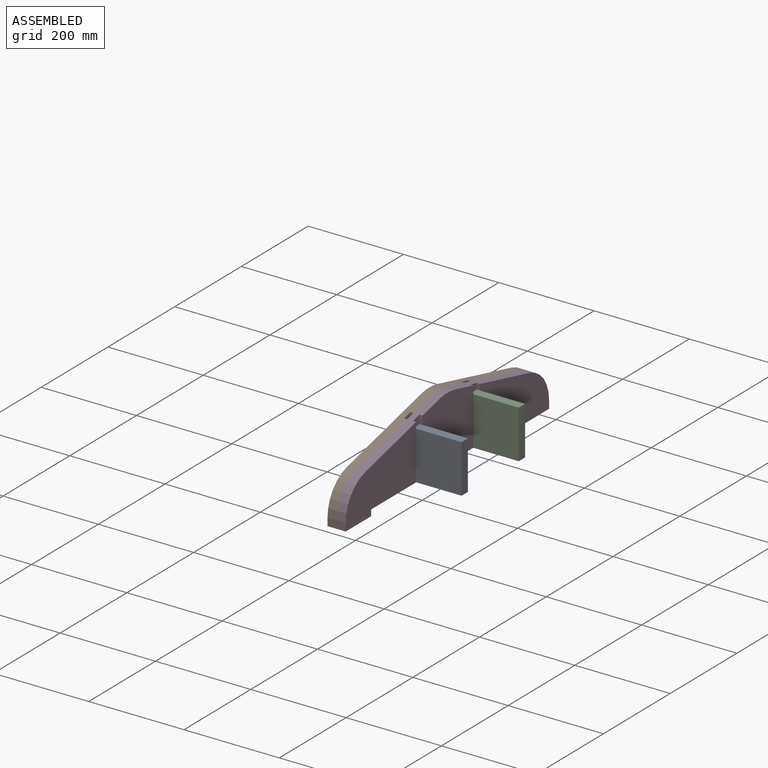
[diagram: assembled view]
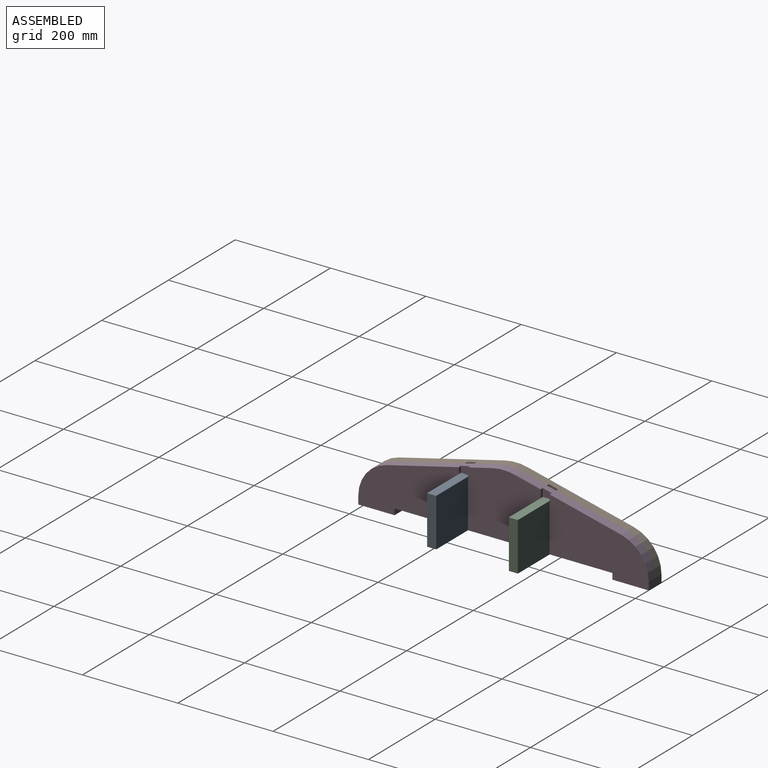
[diagram: assembled view, second angle]
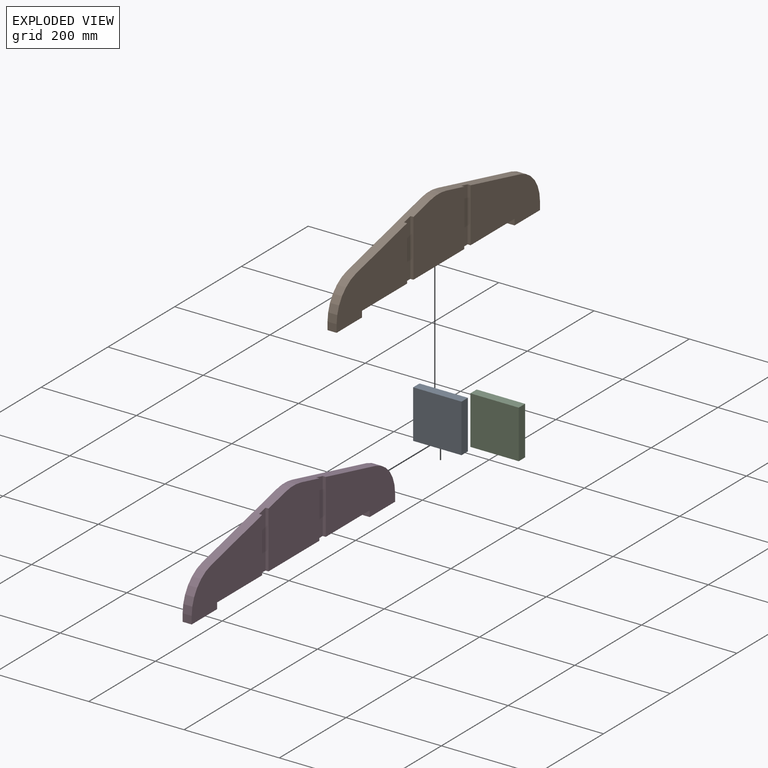
[diagram: exploded view]
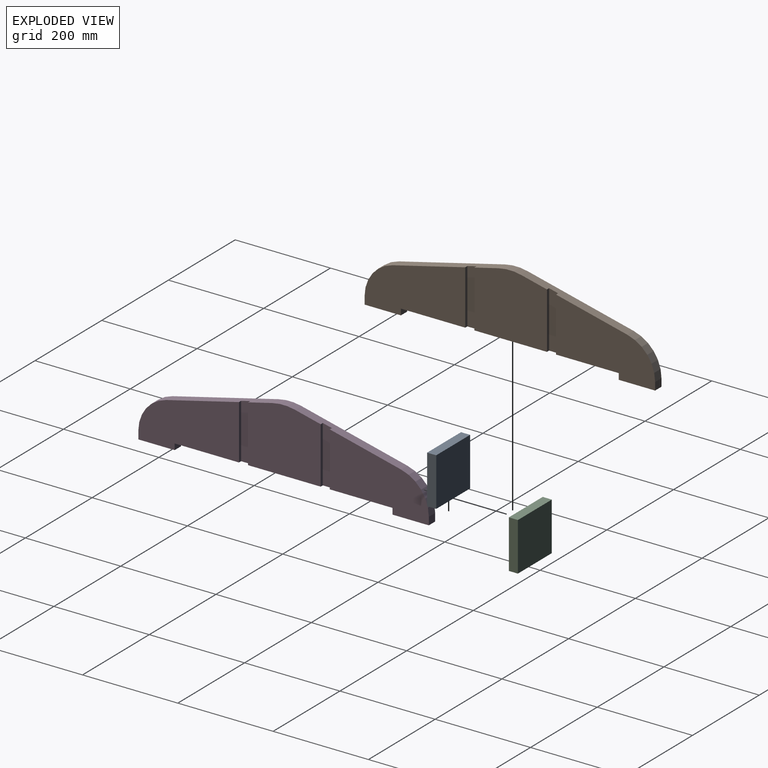
[diagram: exploded view, second angle]
ASSEMBLY  parts=4 mates=3
PART A: 6 faces, bbox 101.6x19.1x101.6 mm
  f0: plane 101.6x19.05mm, normal (0,0,1), area 1935.5mm2, adj f1,f3,f4,f5
  f1: plane 101.6x19.05mm, normal (-1,0,0), area 1935.5mm2, adj f0,f2,f4,f5
  f2: plane 101.6x19.05mm, normal (0,0,-1), area 1935.5mm2, adj f1,f3,f4,f5
  f3: plane 101.6x19.05mm, normal (1,0,0), area 1935.5mm2, adj f0,f2,f4,f5
  f4: plane 101.6x101.6mm, normal (0,-1,0), area 10322.6mm2, adj f0,f1,f2,f3
  f5: plane 101.6x101.6mm, normal (0,1,0), area 10322.6mm2, adj f0,f1,f2,f3
PART B: 22 faces, bbox 19.1x609.6x146.9 mm
  f0: plane 152.4x134.22mm, normal (1,0,0), area 19450.7mm2, adj f2,f7,f12,f13,f16,f20
  f1: plane 207.88x126.43mm, normal (1,0,0), area 18690.3mm2, adj f2,f7,f8,f9,f10,f11,f19
  f2: plane 222.63x53.79mm, normal (0,0.23,0.97), area 4238.8mm2, adj f0,f1,f11,f12,f15,f19,f20,f21
  f3: cylinder r=76.2mm len=74.07mm, axis (-1,0,0), area 1936mm2, adj f4,f13,f14,f15
  f4: plane 19.05x16.22mm, normal (0,-1,0), area 309mm2, adj f3,f5,f14,f15
  f5: plane 76.2x19.05mm, normal (0,0,-1), area 1451.6mm2, adj f4,f6,f14,f15
  f6: plane 19.05x12.7mm, normal (0,1,0), area 241.9mm2, adj f5,f7,f14,f15
  f7: plane 457.2x19.05mm, normal (0,0,-1), area 8467.7mm2, adj f0,f1,f6,f8,f14,f15,f16,f17
  f8: plane 19.05x12.7mm, normal (0,-1,0), area 241.9mm2, adj f1,f7,f9,f15
  f9: plane 76.2x19.05mm, normal (0,0,-1), area 1451.6mm2, adj f1,f8,f10,f15
  f10: plane 19.05x16.22mm, normal (0,1,0), area 309mm2, adj f1,f9,f11,f15
  f11: cylinder r=76.2mm len=74.07mm, axis (-1,0,0), area 1936mm2, adj f1,f2,f10,f15
  f12: cylinder r=101.6mm len=47.73mm, axis (-1,0,0), area 917.7mm2, adj f0,f2,f13,f15
  f13: plane 222.63x53.79mm, normal (0,-0.23,0.97), area 4238.8mm2, adj f0,f3,f12,f14,f15,f16,f17,f18
  f14: plane 211.22x127.24mm, normal (1,0,0), area 19071.8mm2, adj f3,f4,f5,f6,f7,f13,f17
  f15: plane 609.6x146.92mm, normal (-1,0,0), area 61648.9mm2, adj f2,f3,f4,f5,f6,f7,f8,f9
  f16: plane 119.14x6.35mm, normal (0,-1,0), area 756.5mm2, adj f0,f7,f13,f18
  f17: plane 114.54x6.35mm, normal (0,1,0), area 727.3mm2, adj f7,f13,f14,f18
  f18: plane 119.14x19.05mm, normal (1,0,0), area 2225.8mm2, adj f7,f13,f16,f17
  f19: plane 113.73x6.35mm, normal (0,-1,0), area 722.2mm2, adj f1,f2,f7,f21
  f20: plane 118.33x6.35mm, normal (0,1,0), area 751.4mm2, adj f0,f2,f7,f21
  f21: plane 118.33x19.05mm, normal (1,0,0), area 2210.4mm2, adj f2,f7,f19,f20
PART C: same geometry as A
PART D: same geometry as B
PLACE A t=(21.92,32.87,26.81)mm
PLACE B t=(-60.82,23.35,33.78)mm
PLACE C t=(21.92,204.32,26.81)mm
PLACE D t=(-41.77,23.35,33.78)mm
MATE fastened C.f2 <-> D.f7  axis (0,0,-1) through (-29.07,204.32,3.77)mm
MATE fastened B.f5 <-> D.f5  axis (0,0,1) through (-41.77,-197.4,-8.93)mm
MATE fastened A.f2 <-> D.f7  axis (0,0,-1) through (-29.07,13.82,3.77)mm
